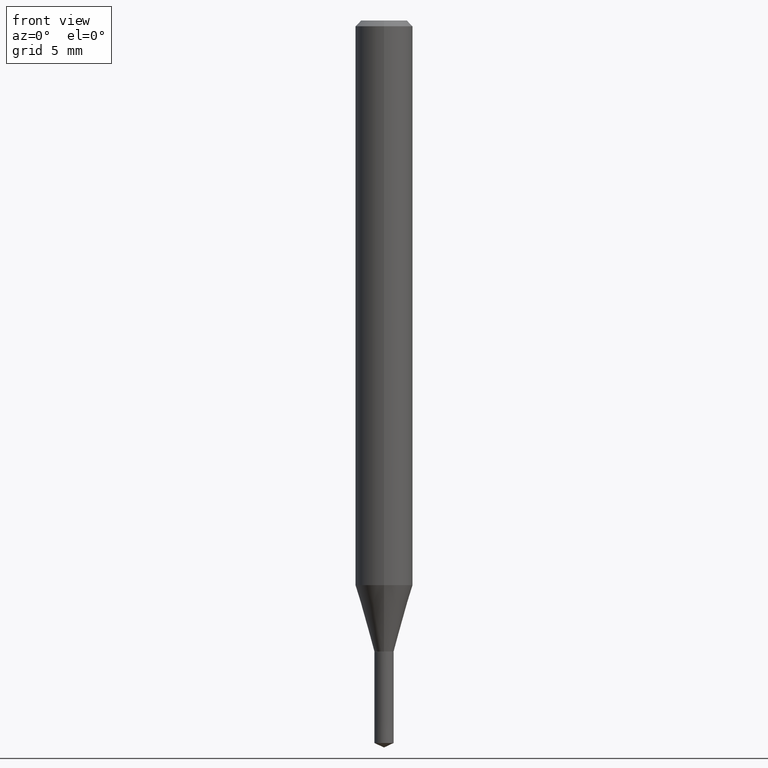
[diagram: clean part render]
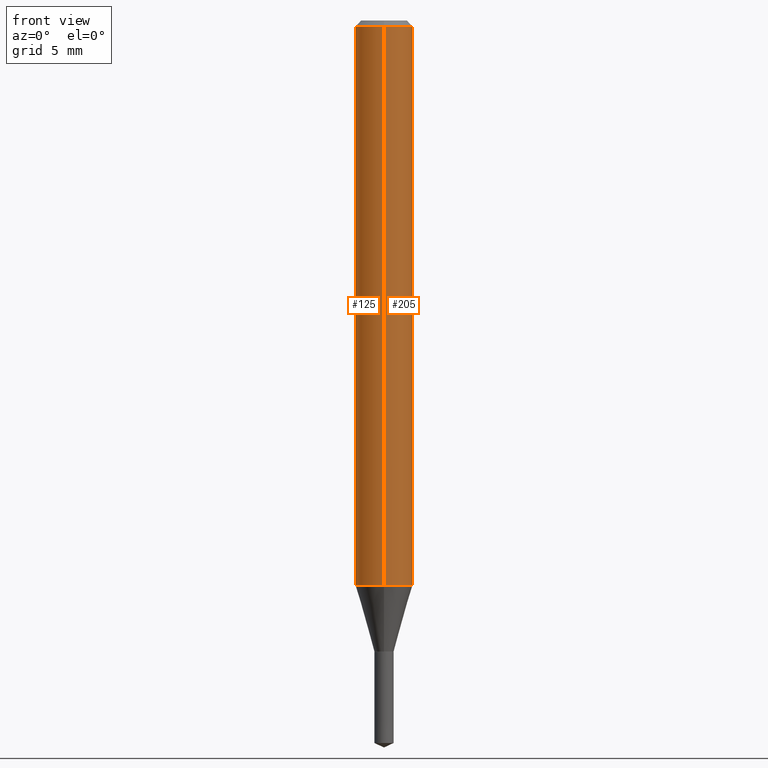
[diagram: same view with one multi-face feature highlighted, each face labeled with its STEP entity id]
A machine part, front view. The highlighted faces form ONE feature: a constant-radius fillet chain: 2 tangent blend faces with common blend radius 1.5 mm. The faces share edges in the B-rep.
Their STEP definitions:
[1] entity #125 (Cylinder):
#91=EDGE_CURVE('',#105,#153,#226,.T.);
#105=VERTEX_POINT('',#243);
#125=ADVANCED_FACE('',(#268),#269,.T.);
#141=EDGE_CURVE('',#161,#149,#286,.T.);
#149=VERTEX_POINT('',#294);
#153=VERTEX_POINT('',#298);
#161=VERTEX_POINT('',#306);
#165=EDGE_CURVE('',#153,#161,#310,.T.);
#189=EDGE_CURVE('',#105,#149,#336,.T.);
#226=LINE('',#369,#370);
#243=CARTESIAN_POINT('',(1.83690953073357E-016,-1.5,-29.513));
#268=FACE_OUTER_BOUND('',#420,.T.);
#269=CYLINDRICAL_SURFACE('',#421,1.5);
#286=LINE('',#445,#446);
#294=CARTESIAN_POINT('',(0.0,1.5,-29.513));
#298=CARTESIAN_POINT('',(1.83690953073357E-016,-1.5,-0.300000000000001));
#306=CARTESIAN_POINT('',(0.0,1.5,-0.300000000000001));
#310=CIRCLE('',#475,1.5);
#336=CIRCLE('',#509,1.5);
#369=CARTESIAN_POINT('',(1.83690953073357E-016,-1.5,-14.9065));
#370=VECTOR('',#535,1.0);
#420=EDGE_LOOP('',(#609,#610,#611,#612));
#421=AXIS2_PLACEMENT_3D('',#613,#614,#615);
#445=CARTESIAN_POINT('',(-1.83690953073357E-016,1.5,-14.9065));
#446=VECTOR('',#631,1.0);
#475=AXIS2_PLACEMENT_3D('',#644,#645,#646);
#509=AXIS2_PLACEMENT_3D('',#671,#672,#673);
#535=DIRECTION('',(-0.0,-0.0,1.0));
#609=ORIENTED_EDGE('',*,*,#141,.T.);
#610=ORIENTED_EDGE('',*,*,#189,.F.);
#611=ORIENTED_EDGE('',*,*,#91,.T.);
#612=ORIENTED_EDGE('',*,*,#165,.T.);
#613=CARTESIAN_POINT('',(0.0,0.0,-14.9065));
#614=DIRECTION('',(-0.0,-0.0,1.0));
#615=DIRECTION('',(0.0,1.0,0.0));
#631=DIRECTION('',(0.0,0.0,-1.0));
#644=CARTESIAN_POINT('',(0.0,0.0,-0.300000000000001));
#645=DIRECTION('',(0.0,0.0,-1.0));
#646=DIRECTION('',(0.0,1.0,0.0));
#671=CARTESIAN_POINT('',(0.0,0.0,-29.513));
#672=DIRECTION('',(0.0,0.0,-1.0));
#673=DIRECTION('',(0.0,1.0,0.0));
[2] entity #205 (Cylinder):
#91=EDGE_CURVE('',#105,#153,#226,.T.);
#105=VERTEX_POINT('',#243);
#119=EDGE_CURVE('',#149,#105,#261,.T.);
#141=EDGE_CURVE('',#161,#149,#286,.T.);
#149=VERTEX_POINT('',#294);
#153=VERTEX_POINT('',#298);
#161=VERTEX_POINT('',#306);
#193=EDGE_CURVE('',#161,#153,#340,.T.);
#205=ADVANCED_FACE('',(#354),#355,.T.);
#226=LINE('',#369,#370);
#243=CARTESIAN_POINT('',(1.83690953073357E-016,-1.5,-29.513));
#261=CIRCLE('',#412,1.5);
#286=LINE('',#445,#446);
#294=CARTESIAN_POINT('',(0.0,1.5,-29.513));
#298=CARTESIAN_POINT('',(1.83690953073357E-016,-1.5,-0.300000000000001));
#306=CARTESIAN_POINT('',(0.0,1.5,-0.300000000000001));
#340=CIRCLE('',#516,1.5);
#354=FACE_OUTER_BOUND('',#532,.T.);
#355=CYLINDRICAL_SURFACE('',#533,1.5);
#369=CARTESIAN_POINT('',(1.83690953073357E-016,-1.5,-14.9065));
#370=VECTOR('',#535,1.0);
#412=AXIS2_PLACEMENT_3D('',#594,#595,#596);
#445=CARTESIAN_POINT('',(-1.83690953073357E-016,1.5,-14.9065));
#446=VECTOR('',#631,1.0);
#516=AXIS2_PLACEMENT_3D('',#675,#676,#677);
#532=EDGE_LOOP('',(#696,#697,#698,#699));
#533=AXIS2_PLACEMENT_3D('',#700,#701,#702);
#535=DIRECTION('',(-0.0,-0.0,1.0));
#594=CARTESIAN_POINT('',(0.0,0.0,-29.513));
#595=DIRECTION('',(0.0,0.0,-1.0));
#596=DIRECTION('',(0.0,1.0,0.0));
#631=DIRECTION('',(0.0,0.0,-1.0));
#675=CARTESIAN_POINT('',(0.0,0.0,-0.300000000000001));
#676=DIRECTION('',(0.0,0.0,-1.0));
#677=DIRECTION('',(0.0,1.0,0.0));
#696=ORIENTED_EDGE('',*,*,#141,.F.);
#697=ORIENTED_EDGE('',*,*,#193,.T.);
#698=ORIENTED_EDGE('',*,*,#91,.F.);
#699=ORIENTED_EDGE('',*,*,#119,.F.);
#700=CARTESIAN_POINT('',(0.0,0.0,-14.9065));
#701=DIRECTION('',(-0.0,-0.0,1.0));
#702=DIRECTION('',(0.0,1.0,0.0));